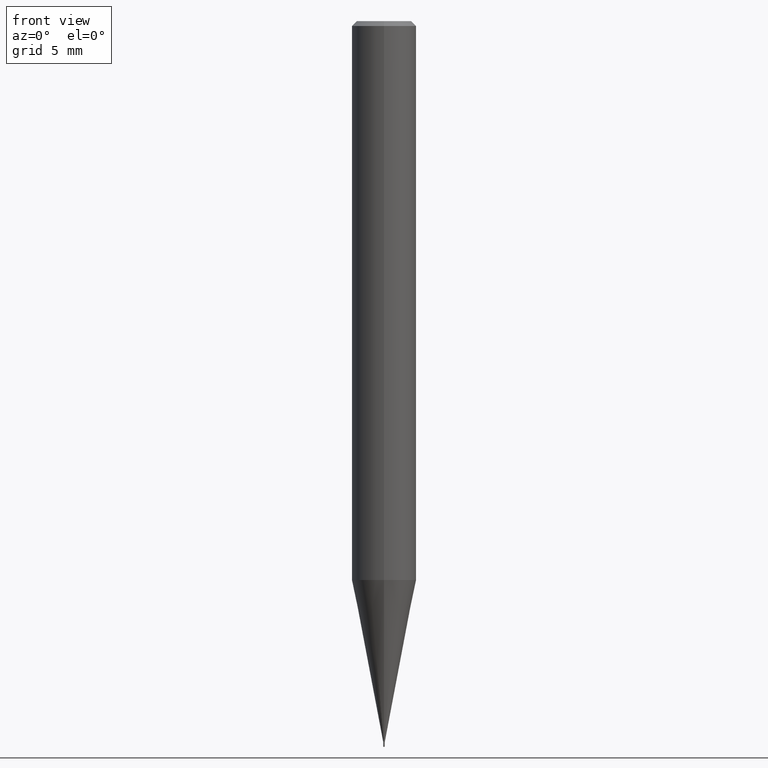
[diagram: clean part render]
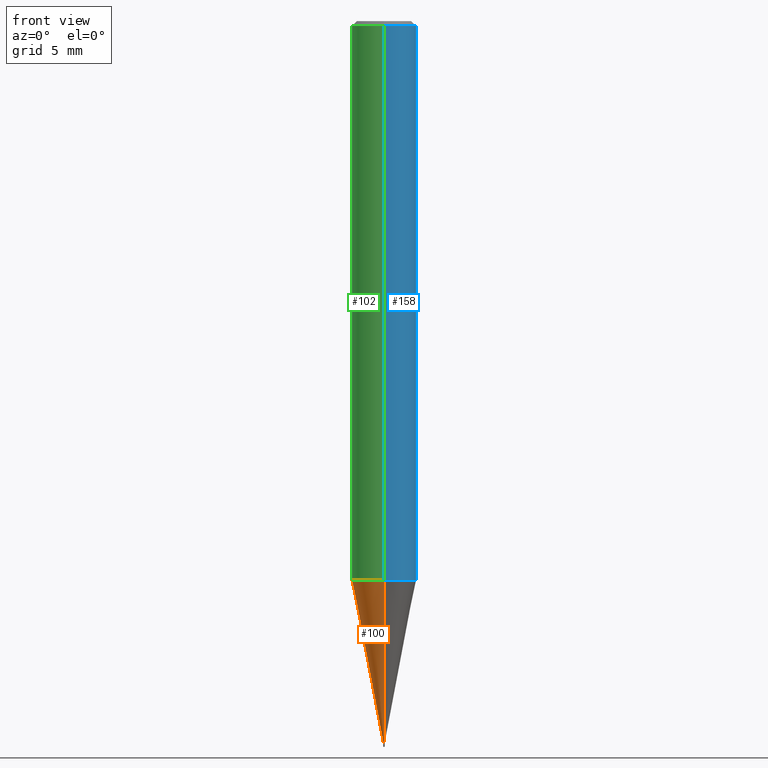
[diagram: same view with three faces highlighted in distinct colors, each labeled with its STEP entity id]
A machine part, front view with three faces highlighted in distinct colors.
Their STEP definitions:

[orange] entity #100 — the highlighted conical surface has half-angle 11 deg.
#98=VERTEX_POINT('',#240);
#100=ADVANCED_FACE('',(#242),#243,.T.);
#132=VERTEX_POINT('',#277);
#140=EDGE_CURVE('',#98,#146,#286,.T.);
#146=VERTEX_POINT('',#293);
#150=EDGE_CURVE('',#98,#132,#297,.T.);
#164=EDGE_CURVE('',#132,#202,#314,.T.);
#190=EDGE_CURVE('',#202,#146,#345,.T.);
#202=VERTEX_POINT('',#358);
#240=CARTESIAN_POINT('',(5.81075714888718E-018,-0.04745,-44.7));
#242=FACE_OUTER_BOUND('',#393,.T.);
#243=CONICAL_SURFACE('',#394,1.0237,0.191981401646118);
#277=CARTESIAN_POINT('',(2.44915147732706E-016,-1.99995,-34.655));
#286=CIRCLE('',#450,0.04745);
#293=CARTESIAN_POINT('',(0.0,0.04745,-44.7));
#297=LINE('',#463,#464);
#314=CIRCLE('',#483,1.99995);
#345=LINE('',#521,#522);
#358=CARTESIAN_POINT('',(0.0,1.99995,-34.655));
#393=EDGE_LOOP('',(#571,#572,#573,#574));
#394=AXIS2_PLACEMENT_3D('',#575,#576,#577);
#450=AXIS2_PLACEMENT_3D('',#621,#622,#623);
#463=CARTESIAN_POINT('',(1.25362952440797E-016,-1.0237,-39.6775));
#464=VECTOR('',#633,1.0);
#483=AXIS2_PLACEMENT_3D('',#658,#659,#660);
#521=CARTESIAN_POINT('',(-1.25362952440797E-016,1.0237,-39.6775));
#522=VECTOR('',#708,1.0);
#571=ORIENTED_EDGE('',*,*,#190,.T.);
#572=ORIENTED_EDGE('',*,*,#140,.F.);
#573=ORIENTED_EDGE('',*,*,#150,.T.);
#574=ORIENTED_EDGE('',*,*,#164,.T.);
#575=CARTESIAN_POINT('',(0.0,0.0,-39.6775));
#576=DIRECTION('',(-0.0,-0.0,1.0));
#577=DIRECTION('',(0.0,1.0,0.0));
#621=CARTESIAN_POINT('',(0.0,0.0,-44.7));
#622=DIRECTION('',(0.0,0.0,-1.0));
#623=DIRECTION('',(0.0,1.0,0.0));
#633=DIRECTION('',(2.33660118667044E-017,-0.190804267785904,0.98162810238638));
#658=CARTESIAN_POINT('',(0.0,0.0,-34.655));
#659=DIRECTION('',(0.0,0.0,-1.0));
#660=DIRECTION('',(0.0,1.0,0.0));
#708=DIRECTION('',(2.33660118667044E-017,-0.190804267785904,-0.98162810238638));

[blue] entity #158 — the highlighted cylindrical surface (edge-blend (fillet) strip) has radius 2 mm, axis along (-0, -0, 1).
#110=EDGE_CURVE('',#168,#198,#255,.T.);
#114=EDGE_CURVE('',#124,#128,#259,.T.);
#124=VERTEX_POINT('',#269);
#128=VERTEX_POINT('',#273);
#158=ADVANCED_FACE('',(#307),#308,.T.);
#160=EDGE_CURVE('',#128,#198,#310,.T.);
#168=VERTEX_POINT('',#318);
#182=EDGE_CURVE('',#168,#124,#336,.T.);
#198=VERTEX_POINT('',#354);
#255=CIRCLE('',#411,2.0);
#259=CIRCLE('',#417,2.0);
#269=CARTESIAN_POINT('',(0.0,2.0,-34.655));
#273=CARTESIAN_POINT('',(2.44921270764475E-016,-2.0,-34.655));
#307=FACE_OUTER_BOUND('',#474,.T.);
#308=CYLINDRICAL_SURFACE('',#475,2.0);
#310=LINE('',#478,#479);
#318=CARTESIAN_POINT('',(0.0,2.0,-0.299999999999997));
#336=LINE('',#508,#509);
#354=CARTESIAN_POINT('',(2.44921270764475E-016,-2.0,-0.299999999999997));
#411=AXIS2_PLACEMENT_3D('',#596,#597,#598);
#417=AXIS2_PLACEMENT_3D('',#602,#603,#604);
#474=EDGE_LOOP('',(#649,#650,#651,#652));
#475=AXIS2_PLACEMENT_3D('',#653,#654,#655);
#478=CARTESIAN_POINT('',(2.44921270764475E-016,-2.0,-17.4775));
#479=VECTOR('',#656,1.0);
#508=CARTESIAN_POINT('',(-2.44921270764475E-016,2.0,-17.4775));
#509=VECTOR('',#693,1.0);
#596=CARTESIAN_POINT('',(0.0,0.0,-0.299999999999997));
#597=DIRECTION('',(0.0,0.0,-1.0));
#598=DIRECTION('',(0.0,1.0,0.0));
#602=CARTESIAN_POINT('',(0.0,0.0,-34.655));
#603=DIRECTION('',(0.0,0.0,-1.0));
#604=DIRECTION('',(0.0,1.0,0.0));
#649=ORIENTED_EDGE('',*,*,#182,.F.);
#650=ORIENTED_EDGE('',*,*,#110,.T.);
#651=ORIENTED_EDGE('',*,*,#160,.F.);
#652=ORIENTED_EDGE('',*,*,#114,.F.);
#653=CARTESIAN_POINT('',(0.0,0.0,-17.4775));
#654=DIRECTION('',(-0.0,-0.0,1.0));
#655=DIRECTION('',(0.0,1.0,0.0));
#656=DIRECTION('',(-0.0,-0.0,1.0));
#693=DIRECTION('',(0.0,0.0,-1.0));

[green] entity #102 — the highlighted cylindrical surface (edge-blend (fillet) strip) has radius 2 mm, axis along (-0, -0, 1).
#102=ADVANCED_FACE('',(#245),#246,.T.);
#124=VERTEX_POINT('',#269);
#128=VERTEX_POINT('',#273);
#160=EDGE_CURVE('',#128,#198,#310,.T.);
#168=VERTEX_POINT('',#318);
#176=EDGE_CURVE('',#128,#124,#329,.T.);
#182=EDGE_CURVE('',#168,#124,#336,.T.);
#188=EDGE_CURVE('',#198,#168,#343,.T.);
#198=VERTEX_POINT('',#354);
#245=FACE_OUTER_BOUND('',#396,.T.);
#246=CYLINDRICAL_SURFACE('',#397,2.0);
#269=CARTESIAN_POINT('',(0.0,2.0,-34.655));
#273=CARTESIAN_POINT('',(2.44921270764475E-016,-2.0,-34.655));
#310=LINE('',#478,#479);
#318=CARTESIAN_POINT('',(0.0,2.0,-0.299999999999997));
#329=CIRCLE('',#499,2.0);
#336=LINE('',#508,#509);
#343=CIRCLE('',#518,2.0);
#354=CARTESIAN_POINT('',(2.44921270764475E-016,-2.0,-0.299999999999997));
#396=EDGE_LOOP('',(#579,#580,#581,#582));
#397=AXIS2_PLACEMENT_3D('',#583,#584,#585);
#478=CARTESIAN_POINT('',(2.44921270764475E-016,-2.0,-17.4775));
#479=VECTOR('',#656,1.0);
#499=AXIS2_PLACEMENT_3D('',#681,#682,#683);
#508=CARTESIAN_POINT('',(-2.44921270764475E-016,2.0,-17.4775));
#509=VECTOR('',#693,1.0);
#518=AXIS2_PLACEMENT_3D('',#705,#706,#707);
#579=ORIENTED_EDGE('',*,*,#182,.T.);
#580=ORIENTED_EDGE('',*,*,#176,.F.);
#581=ORIENTED_EDGE('',*,*,#160,.T.);
#582=ORIENTED_EDGE('',*,*,#188,.T.);
#583=CARTESIAN_POINT('',(0.0,0.0,-17.4775));
#584=DIRECTION('',(-0.0,-0.0,1.0));
#585=DIRECTION('',(0.0,1.0,0.0));
#656=DIRECTION('',(-0.0,-0.0,1.0));
#681=CARTESIAN_POINT('',(0.0,0.0,-34.655));
#682=DIRECTION('',(0.0,0.0,-1.0));
#683=DIRECTION('',(0.0,1.0,0.0));
#693=DIRECTION('',(0.0,0.0,-1.0));
#705=CARTESIAN_POINT('',(0.0,0.0,-0.299999999999997));
#706=DIRECTION('',(0.0,0.0,-1.0));
#707=DIRECTION('',(0.0,1.0,0.0));